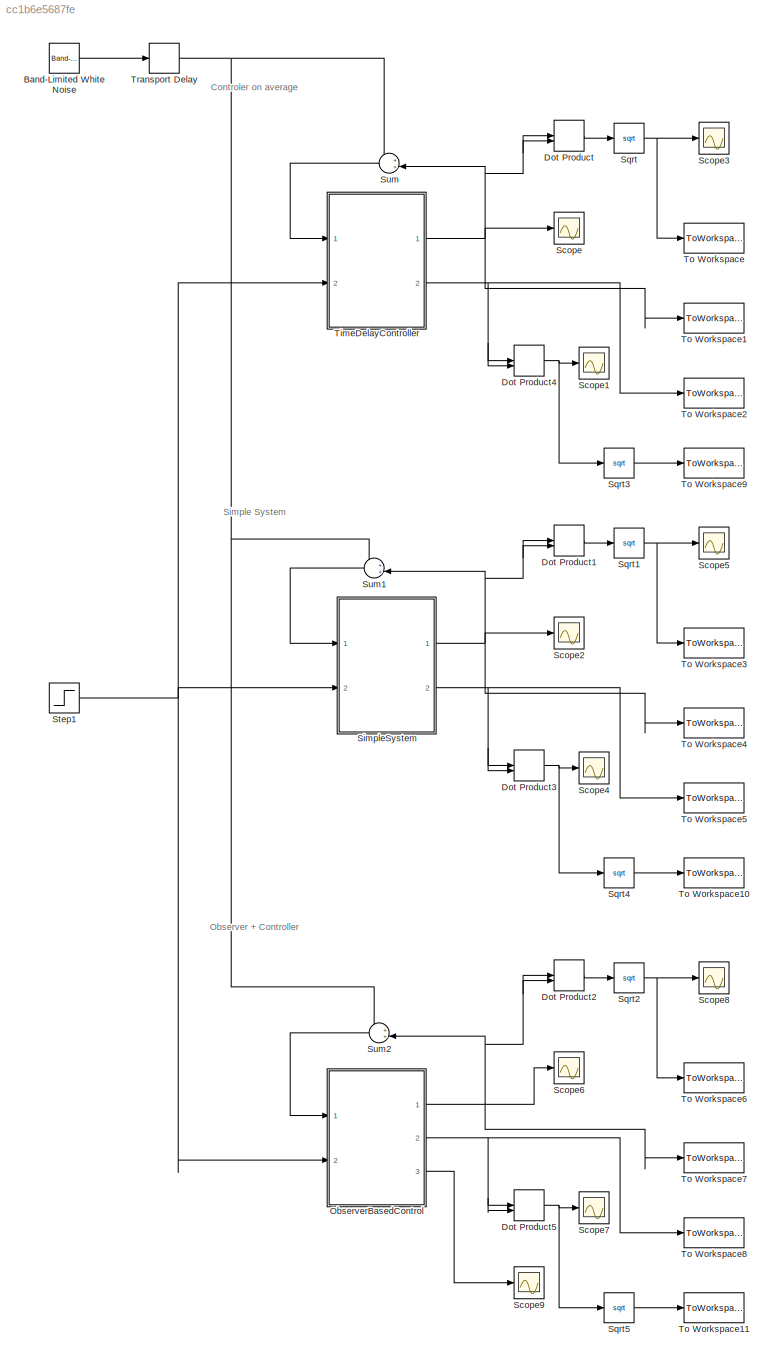
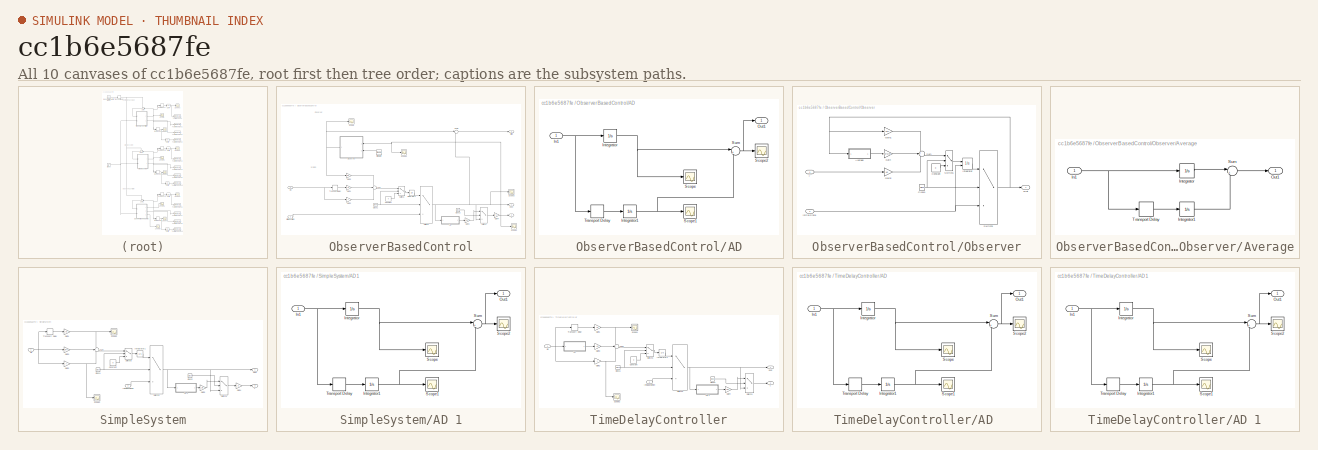
[diagram: thumbnail index - all 10 canvases of the model, root first then tree order]
MODEL slx_cc1b6e5687fe
KIND model
CONFIG AbsTol = 1e-6
CONFIG FixedStep = auto
CONFIG MaxStep = min([h hc ho])/50
CONFIG MinStep = auto
CONFIG RelTol = 1e-5
CONFIG SampleTimeConstraint = Unconstrained
CONFIG Solver = ode45
CONFIG SolverMode = Auto
CONFIG SolverName = ode45
CONFIG StartTime = 0.0
CONFIG StopTime = time
BLOCK [Reference] Band-Limited White Noise  REF=simulink/Sources/Band-Limited
White Noise
  Cov = P
  Ports = [0, 1]
  SourceBlock = simulink/Sources/Band-Limited\nWhite Noise
  SourceType = Band-Limited White Noise.
  Ts = min([hc ho])/5
  VectorParams1D = on
  seed = [23341]
BLOCK [DotProduct] Dot Product
  OutDataTypeStr = Inherit: Inherit via internal rule
BLOCK [DotProduct] Dot Product1
  OutDataTypeStr = Inherit: Inherit via internal rule
BLOCK [DotProduct] Dot Product2
  OutDataTypeStr = Inherit: Inherit via internal rule
BLOCK [DotProduct] Dot Product3
  OutDataTypeStr = Inherit: Inherit via internal rule
BLOCK [DotProduct] Dot Product4
  OutDataTypeStr = Inherit: Inherit via internal rule
BLOCK [DotProduct] Dot Product5
  OutDataTypeStr = Inherit: Inherit via internal rule
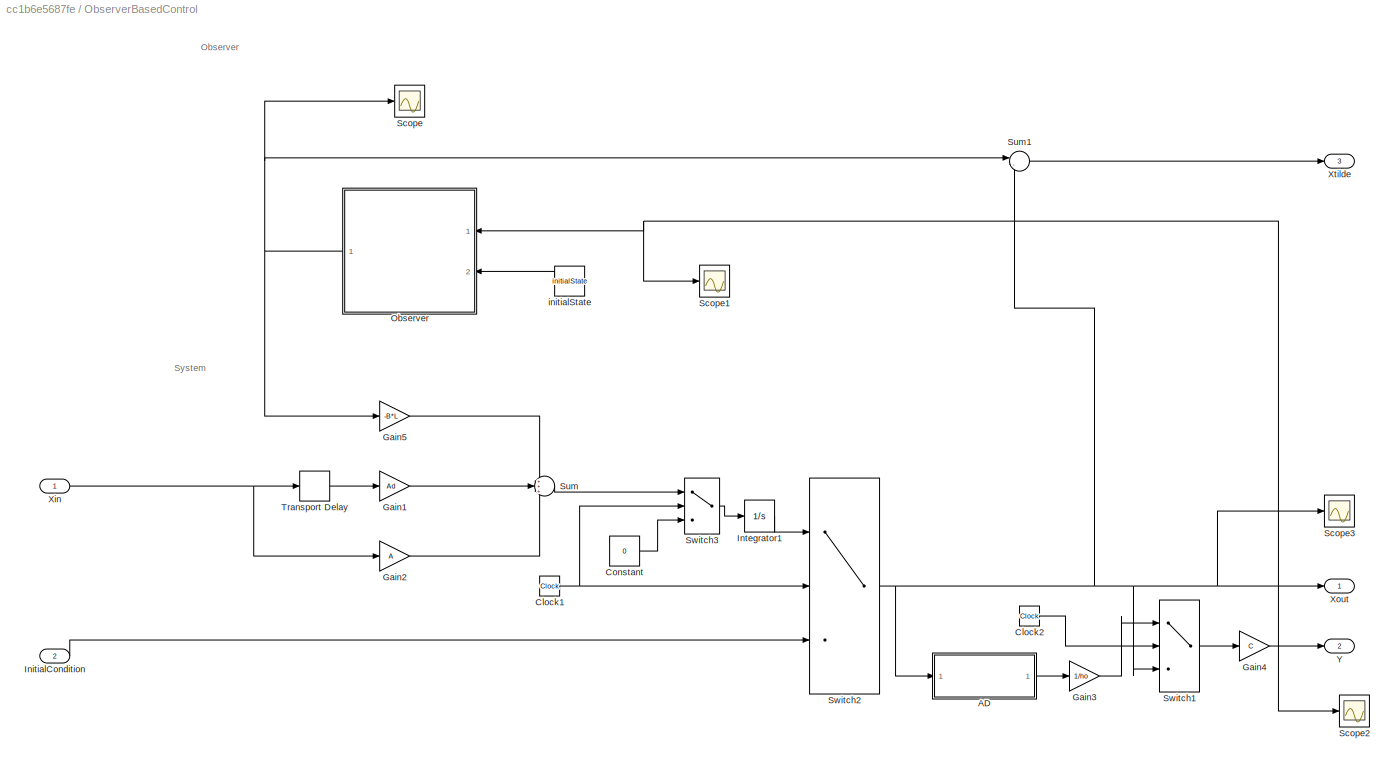
BLOCK [SubSystem] ObserverBasedControl
  Ports = [2, 3]
  RequestExecContextInheritance = off
BLOCK [SubSystem] ObserverBasedControl/AD
  Ports = [1, 1]
  RequestExecContextInheritance = off
BLOCK [Inport] ObserverBasedControl/AD/In1
  IconDisplay = Port number
BLOCK [Integrator] ObserverBasedControl/AD/Integrator
  Ports = [1, 1]
BLOCK [Integrator] ObserverBasedControl/AD/Integrator1
  Ports = [1, 1]
BLOCK [Outport] ObserverBasedControl/AD/Out1
  IconDisplay = Port number
BLOCK [Scope] ObserverBasedControl/AD/Scope
  Floating = off
  NumInputPorts = 1
  Ports = [1]
BLOCK [Scope] ObserverBasedControl/AD/Scope1
  Floating = off
  NumInputPorts = 1
  Ports = [1]
  SaveName = ScopeData1
BLOCK [Scope] ObserverBasedControl/AD/Scope2
  Floating = off
  NumInputPorts = 1
  Ports = [1]
  SaveName = ScopeData2
BLOCK [Sum] ObserverBasedControl/AD/Sum
  IconShape = round
  InputSameDT = off
  Inputs = |+-
  OutDataTypeStr = Inherit: Inherit via internal rule
  Ports = [2, 1]
  SaturateOnIntegerOverflow = off
BLOCK [TransportDelay] ObserverBasedControl/AD/Transport Delay
  DelayTime = ho
  Ports = [1, 1]
BLOCK [Clock] ObserverBasedControl/Clock1
BLOCK [Clock] ObserverBasedControl/Clock2
BLOCK [Constant] ObserverBasedControl/Constant
  Value = 0
BLOCK [Gain] ObserverBasedControl/Gain1
  Gain = Ad
  Multiplication = Matrix(K*u)
  OutDataTypeStr = Inherit: Inherit via internal rule
  ParamDataTypeStr = Inherit: Inherit via internal rule
  SaturateOnIntegerOverflow = off
BLOCK [Gain] ObserverBasedControl/Gain2
  Gain = A
  Multiplication = Matrix(K*u)
  OutDataTypeStr = Inherit: Inherit via internal rule
  ParamDataTypeStr = Inherit: Inherit via internal rule
  SaturateOnIntegerOverflow = off
BLOCK [Gain] ObserverBasedControl/Gain3
  Gain = 1/ho
  Multiplication = Matrix(K*u)
  OutDataTypeStr = Inherit: Inherit via internal rule
  ParamDataTypeStr = Inherit: Inherit via internal rule
  SaturateOnIntegerOverflow = off
BLOCK [Gain] ObserverBasedControl/Gain4
  Gain = C
  Multiplication = Matrix(K*u)
  OutDataTypeStr = Inherit: Inherit via internal rule
  ParamDataTypeStr = Inherit: Inherit via internal rule
  SaturateOnIntegerOverflow = off
BLOCK [Gain] ObserverBasedControl/Gain5
  Gain = -B*L
  Multiplication = Matrix(K*u)
  OutDataTypeStr = Inherit: Inherit via internal rule
  ParamDataTypeStr = Inherit: Inherit via internal rule
  SaturateOnIntegerOverflow = off
BLOCK [Inport] ObserverBasedControl/InitialCondition
  IconDisplay = Port number
  Port = 2
BLOCK [Integrator] ObserverBasedControl/Integrator1
  InitialCondition = init*ones(size(A,1),1)
  Ports = [1, 1]
BLOCK [SubSystem] ObserverBasedControl/Observer
  Ports = [2, 1]
  RequestExecContextInheritance = off
BLOCK [SubSystem] ObserverBasedControl/Observer/Average
  Ports = [1, 1]
  RequestExecContextInheritance = off
BLOCK [Inport] ObserverBasedControl/Observer/Average/In1
  IconDisplay = Port number
BLOCK [Integrator] ObserverBasedControl/Observer/Average/Integrator
  Ports = [1, 1]
BLOCK [Integrator] ObserverBasedControl/Observer/Average/Integrator1
  Ports = [1, 1]
BLOCK [Outport] ObserverBasedControl/Observer/Average/Out1
  IconDisplay = Port number
BLOCK [Sum] ObserverBasedControl/Observer/Average/Sum
  IconShape = round
  InputSameDT = off
  Inputs = |+-
  OutDataTypeStr = Inherit: Inherit via internal rule
  Ports = [2, 1]
  SaturateOnIntegerOverflow = off
BLOCK [TransportDelay] ObserverBasedControl/Observer/Average/Transport Delay
  DelayTime = ho
  Ports = [1, 1]
BLOCK [Clock] ObserverBasedControl/Observer/Clock1
BLOCK [Constant] ObserverBasedControl/Observer/Constant
  Value = 0
BLOCK [Gain] ObserverBasedControl/Observer/Gain
  Gain = -Ko*C/ho
  Multiplication = Matrix(K*u)
  OutDataTypeStr = Inherit: Inherit via internal rule
  ParamDataTypeStr = Inherit: Inherit via internal rule
  SaturateOnIntegerOverflow = off
BLOCK [Gain] ObserverBasedControl/Observer/Gain1
  Gain = A-B*L
  Multiplication = Matrix(K*u)
  OutDataTypeStr = Inherit: Inherit via internal rule
  ParamDataTypeStr = Inherit: Inherit via internal rule
  SaturateOnIntegerOverflow = off
BLOCK [Gain] ObserverBasedControl/Observer/Gain2
  Gain = Ko
  Multiplication = Matrix(K*u)
  OutDataTypeStr = Inherit: Inherit via internal rule
  ParamDataTypeStr = Inherit: Inherit via internal rule
  SaturateOnIntegerOverflow = off
BLOCK [Integrator] ObserverBasedControl/Observer/Integrator
  InitialConditionSource = external
  Ports = [2, 1]
BLOCK [Sum] ObserverBasedControl/Observer/Sum
  IconShape = round
  InputSameDT = off
  Inputs = +++
  OutDataTypeStr = Inherit: Inherit via internal rule
  Ports = [3, 1]
  SaturateOnIntegerOverflow = off
BLOCK [Switch] ObserverBasedControl/Observer/Switch1
  LockScale = on
  SaturateOnIntegerOverflow = off
  Threshold = max([h hc ho])
BLOCK [Switch] ObserverBasedControl/Observer/Switch3
  LockScale = on
  SaturateOnIntegerOverflow = off
  Threshold = max([h hc ho])
BLOCK [Inport] ObserverBasedControl/Observer/initialState
  IconDisplay = Port number
  Port = 2
BLOCK [Outport] ObserverBasedControl/Observer/xHat
  IconDisplay = Port number
BLOCK [Inport] ObserverBasedControl/Observer/y
  IconDisplay = Port number
BLOCK [Scope] ObserverBasedControl/Scope
  Floating = off
  NumInputPorts = 1
  Ports = [1]
  SaveName = ScopeData14
  TimeRange = 5
  ZoomMode = xonly
BLOCK [Scope] ObserverBasedControl/Scope1
  Floating = off
  NumInputPorts = 1
  Ports = [1]
  SaveName = ScopeData15
BLOCK [Scope] ObserverBasedControl/Scope2
  Floating = off
  NumInputPorts = 1
  Ports = [1]
  SaveName = ScopeData17
BLOCK [Scope] ObserverBasedControl/Scope3
  Floating = off
  NumInputPorts = 1
  Ports = [1]
  SaveName = ScopeData18
BLOCK [Sum] ObserverBasedControl/Sum
  IconShape = round
  InputSameDT = off
  Inputs = +++
  OutDataTypeStr = Inherit: Inherit via internal rule
  Ports = [3, 1]
  SaturateOnIntegerOverflow = off
BLOCK [Sum] ObserverBasedControl/Sum1
  IconShape = round
  InputSameDT = off
  Inputs = |-+
  OutDataTypeStr = Inherit: Inherit via internal rule
  Ports = [2, 1]
  SaturateOnIntegerOverflow = off
BLOCK [Switch] ObserverBasedControl/Switch1
  LockScale = on
  SaturateOnIntegerOverflow = off
  Threshold = max([h hc ho])
BLOCK [Switch] ObserverBasedControl/Switch2
  LockScale = on
  SaturateOnIntegerOverflow = off
  Threshold = max([h hc ho])
BLOCK [Switch] ObserverBasedControl/Switch3
  LockScale = on
  SaturateOnIntegerOverflow = off
  Threshold = max([h hc ho])
BLOCK [TransportDelay] ObserverBasedControl/Transport Delay
  DelayTime = ho
  Ports = [1, 1]
BLOCK [Inport] ObserverBasedControl/Xin
  IconDisplay = Port number
BLOCK [Outport] ObserverBasedControl/Xout
  IconDisplay = Port number
BLOCK [Outport] ObserverBasedControl/Xtilde
  IconDisplay = Port number
  Port = 3
BLOCK [Outport] ObserverBasedControl/Y
  IconDisplay = Port number
  Port = 2
BLOCK [Constant] ObserverBasedControl/initialState
  Value = initialState
BLOCK [Scope] Scope
  Floating = off
  NumInputPorts = 1
  Ports = [1]
  SaveName = ScopeData3
  ZoomMode = xonly
BLOCK [Scope] Scope1
  Floating = off
  NumInputPorts = 1
  Ports = [1]
  SaveName = ScopeData4
  ZoomMode = xonly
BLOCK [Scope] Scope2
  Floating = off
  NumInputPorts = 1
  Ports = [1]
  SaveName = ScopeData5
  ZoomMode = xonly
BLOCK [Scope] Scope3
  Floating = off
  NumInputPorts = 1
  Ports = [1]
  SaveName = ScopeData6
BLOCK [Scope] Scope4
  Floating = off
  NumInputPorts = 1
  Ports = [1]
  SaveName = ScopeData9
  ZoomMode = xonly
BLOCK [Scope] Scope5
  Floating = off
  NumInputPorts = 1
  Ports = [1]
  SaveName = ScopeData10
BLOCK [Scope] Scope6
  Floating = off
  NumInputPorts = 1
  Ports = [1]
  SaveName = ScopeData11
  ZoomMode = xonly
BLOCK [Scope] Scope7
  Floating = off
  NumInputPorts = 1
  Ports = [1]
  SaveName = ScopeData12
  ZoomMode = xonly
BLOCK [Scope] Scope8
  Floating = off
  NumInputPorts = 1
  Ports = [1]
  SaveName = ScopeData13
BLOCK [Scope] Scope9
  Floating = off
  NumInputPorts = 1
  Ports = [1]
  SaveName = ScopeData16
  ZoomMode = xonly
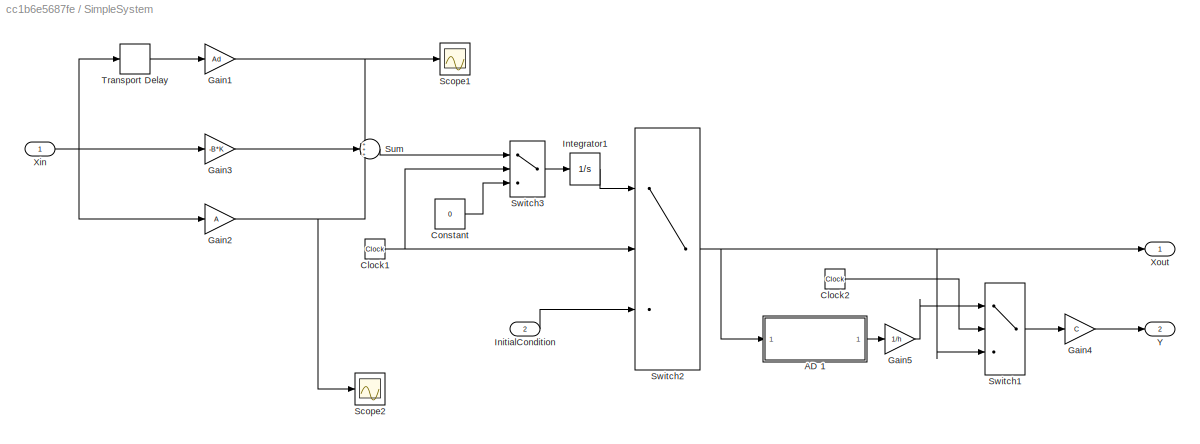
BLOCK [SubSystem] SimpleSystem
  Ports = [2, 2]
  RequestExecContextInheritance = off
BLOCK [SubSystem] SimpleSystem/AD 1
  Ports = [1, 1]
  RequestExecContextInheritance = off
BLOCK [Inport] SimpleSystem/AD 1/In1
  IconDisplay = Port number
BLOCK [Integrator] SimpleSystem/AD 1/Integrator
  Ports = [1, 1]
BLOCK [Integrator] SimpleSystem/AD 1/Integrator1
  Ports = [1, 1]
BLOCK [Outport] SimpleSystem/AD 1/Out1
  IconDisplay = Port number
BLOCK [Scope] SimpleSystem/AD 1/Scope
  Floating = off
  NumInputPorts = 1
  Ports = [1]
BLOCK [Scope] SimpleSystem/AD 1/Scope1
  Floating = off
  NumInputPorts = 1
  Ports = [1]
  SaveName = ScopeData1
BLOCK [Scope] SimpleSystem/AD 1/Scope2
  Floating = off
  NumInputPorts = 1
  Ports = [1]
  SaveName = ScopeData2
BLOCK [Sum] SimpleSystem/AD 1/Sum
  IconShape = round
  InputSameDT = off
  Inputs = |+-
  OutDataTypeStr = Inherit: Inherit via internal rule
  Ports = [2, 1]
  SaturateOnIntegerOverflow = off
BLOCK [TransportDelay] SimpleSystem/AD 1/Transport Delay
  DelayTime = h
  Ports = [1, 1]
BLOCK [Clock] SimpleSystem/Clock1
BLOCK [Clock] SimpleSystem/Clock2
BLOCK [Constant] SimpleSystem/Constant
  Value = 0
BLOCK [Gain] SimpleSystem/Gain1
  Gain = Ad
  Multiplication = Matrix(K*u)
  OutDataTypeStr = Inherit: Inherit via internal rule
  ParamDataTypeStr = Inherit: Inherit via internal rule
  SaturateOnIntegerOverflow = off
BLOCK [Gain] SimpleSystem/Gain2
  Gain = A
  Multiplication = Matrix(K*u)
  OutDataTypeStr = Inherit: Inherit via internal rule
  ParamDataTypeStr = Inherit: Inherit via internal rule
  SaturateOnIntegerOverflow = off
BLOCK [Gain] SimpleSystem/Gain3
  Gain = -B*K
  Multiplication = Matrix(K*u)
  OutDataTypeStr = Inherit: Inherit via internal rule
  ParamDataTypeStr = Inherit: Inherit via internal rule
  SaturateOnIntegerOverflow = off
BLOCK [Gain] SimpleSystem/Gain4
  Gain = C
  Multiplication = Matrix(K*u)
  OutDataTypeStr = Inherit: Inherit via internal rule
  ParamDataTypeStr = Inherit: Inherit via internal rule
  SaturateOnIntegerOverflow = off
BLOCK [Gain] SimpleSystem/Gain5
  Gain = 1/h
  Multiplication = Matrix(K*u)
  OutDataTypeStr = Inherit: Inherit via internal rule
  ParamDataTypeStr = Inherit: Inherit via internal rule
  SaturateOnIntegerOverflow = off
BLOCK [Inport] SimpleSystem/InitialCondition
  IconDisplay = Port number
  Port = 2
BLOCK [Integrator] SimpleSystem/Integrator1
  InitialCondition = init*ones(size(A,1),1)
  Ports = [1, 1]
BLOCK [Scope] SimpleSystem/Scope1
  Floating = off
  NumInputPorts = 1
  Ports = [1]
  SaveName = ScopeData7
BLOCK [Scope] SimpleSystem/Scope2
  Floating = off
  NumInputPorts = 1
  Ports = [1]
  SaveName = ScopeData8
BLOCK [Sum] SimpleSystem/Sum
  IconShape = round
  InputSameDT = off
  Inputs = +++
  OutDataTypeStr = Inherit: Inherit via internal rule
  Ports = [3, 1]
  SaturateOnIntegerOverflow = off
BLOCK [Switch] SimpleSystem/Switch1
  LockScale = on
  SaturateOnIntegerOverflow = off
  Threshold = max([h hc ho])
BLOCK [Switch] SimpleSystem/Switch2
  LockScale = on
  SaturateOnIntegerOverflow = off
  Threshold = max([h hc ho])
BLOCK [Switch] SimpleSystem/Switch3
  LockScale = on
  SaturateOnIntegerOverflow = off
  Threshold = max([h hc ho])
BLOCK [TransportDelay] SimpleSystem/Transport Delay
  DelayTime = h
  Ports = [1, 1]
BLOCK [Inport] SimpleSystem/Xin
  IconDisplay = Port number
BLOCK [Outport] SimpleSystem/Xout
  IconDisplay = Port number
BLOCK [Outport] SimpleSystem/Y
  IconDisplay = Port number
  Port = 2
BLOCK [Sqrt] Sqrt
BLOCK [Sqrt] Sqrt1
BLOCK [Sqrt] Sqrt2
BLOCK [Sqrt] Sqrt3
BLOCK [Sqrt] Sqrt4
BLOCK [Sqrt] Sqrt5
BLOCK [Step] Step1
  After = 0
  Before = init*ones(size(A,1),1)
  SampleTime = 0
  Time = hc
BLOCK [Sum] Sum
  IconShape = round
  InputSameDT = off
  Inputs = ++|
  OutDataTypeStr = Inherit: Inherit via internal rule
  Ports = [2, 1]
  SaturateOnIntegerOverflow = off
BLOCK [Sum] Sum1
  IconShape = round
  InputSameDT = off
  Inputs = ++|
  OutDataTypeStr = Inherit: Inherit via internal rule
  Ports = [2, 1]
  SaturateOnIntegerOverflow = off
BLOCK [Sum] Sum2
  IconShape = round
  InputSameDT = off
  Inputs = ++|
  OutDataTypeStr = Inherit: Inherit via internal rule
  Ports = [2, 1]
  SaturateOnIntegerOverflow = off
BLOCK [SubSystem] TimeDelayController
  Ports = [2, 2]
  RequestExecContextInheritance = off
BLOCK [SubSystem] TimeDelayController/AD 
  Ports = [1, 1]
  RequestExecContextInheritance = off
BLOCK [Inport] TimeDelayController/AD /In1
  IconDisplay = Port number
BLOCK [Integrator] TimeDelayController/AD /Integrator
  Ports = [1, 1]
BLOCK [Integrator] TimeDelayController/AD /Integrator1
  Ports = [1, 1]
BLOCK [Outport] TimeDelayController/AD /Out1
  IconDisplay = Port number
BLOCK [Scope] TimeDelayController/AD /Scope
  Floating = off
  NumInputPorts = 1
  Ports = [1]
BLOCK [Scope] TimeDelayController/AD /Scope1
  Floating = off
  NumInputPorts = 1
  Ports = [1]
  SaveName = ScopeData1
BLOCK [Scope] TimeDelayController/AD /Scope2
  Floating = off
  NumInputPorts = 1
  Ports = [1]
  SaveName = ScopeData2
BLOCK [Sum] TimeDelayController/AD /Sum
  IconShape = round
  InputSameDT = off
  Inputs = |+-
  OutDataTypeStr = Inherit: Inherit via internal rule
  Ports = [2, 1]
  SaturateOnIntegerOverflow = off
BLOCK [TransportDelay] TimeDelayController/AD /Transport Delay
  DelayTime = hc
  Ports = [1, 1]
BLOCK [SubSystem] TimeDelayController/AD 1
  Ports = [1, 1]
  RequestExecContextInheritance = off
BLOCK [Inport] TimeDelayController/AD 1/In1
  IconDisplay = Port number
BLOCK [Integrator] TimeDelayController/AD 1/Integrator
  Ports = [1, 1]
BLOCK [Integrator] TimeDelayController/AD 1/Integrator1
  Ports = [1, 1]
BLOCK [Outport] TimeDelayController/AD 1/Out1
  IconDisplay = Port number
BLOCK [Scope] TimeDelayController/AD 1/Scope
  Floating = off
  NumInputPorts = 1
  Ports = [1]
BLOCK [Scope] TimeDelayController/AD 1/Scope1
  Floating = off
  NumInputPorts = 1
  Ports = [1]
  SaveName = ScopeData1
BLOCK [Scope] TimeDelayController/AD 1/Scope2
  Floating = off
  NumInputPorts = 1
  Ports = [1]
  SaveName = ScopeData2
BLOCK [Sum] TimeDelayController/AD 1/Sum
  IconShape = round
  InputSameDT = off
  Inputs = |+-
  OutDataTypeStr = Inherit: Inherit via internal rule
  Ports = [2, 1]
  SaturateOnIntegerOverflow = off
BLOCK [TransportDelay] TimeDelayController/AD 1/Transport Delay
  DelayTime = hc
  Ports = [1, 1]
BLOCK [Clock] TimeDelayController/Clock1
BLOCK [Clock] TimeDelayController/Clock2
BLOCK [Constant] TimeDelayController/Constant
  Value = 0
BLOCK [Gain] TimeDelayController/Gain1
  Gain = Ad
  Multiplication = Matrix(K*u)
  OutDataTypeStr = Inherit: Inherit via internal rule
  ParamDataTypeStr = Inherit: Inherit via internal rule
  SaturateOnIntegerOverflow = off
BLOCK [Gain] TimeDelayController/Gain2
  Gain = A
  Multiplication = Matrix(K*u)
  OutDataTypeStr = Inherit: Inherit via internal rule
  ParamDataTypeStr = Inherit: Inherit via internal rule
  SaturateOnIntegerOverflow = off
BLOCK [Gain] TimeDelayController/Gain3
  Gain = AD
  Multiplication = Matrix(K*u)
  OutDataTypeStr = Inherit: Inherit via internal rule
  ParamDataTypeStr = Inherit: Inherit via internal rule
  SaturateOnIntegerOverflow = off
BLOCK [Gain] TimeDelayController/Gain4
  Gain = 1/hc
  Multiplication = Matrix(K*u)
  OutDataTypeStr = Inherit: Inherit via internal rule
  ParamDataTypeStr = Inherit: Inherit via internal rule
  SaturateOnIntegerOverflow = off
BLOCK [Inport] TimeDelayController/InitialCondition
  IconDisplay = Port number
  Port = 2
BLOCK [Integrator] TimeDelayController/Integrator1
  InitialCondition = init*ones(size(A,1),1)
  Ports = [1, 1]
BLOCK [Scope] TimeDelayController/Scope1
  Floating = off
  NumInputPorts = 1
  Ports = [1]
  SaveName = ScopeData7
BLOCK [Scope] TimeDelayController/Scope2
  Floating = off
  NumInputPorts = 1
  Ports = [1]
  SaveName = ScopeData8
BLOCK [Sum] TimeDelayController/Sum
  IconShape = round
  InputSameDT = off
  Inputs = +++
  OutDataTypeStr = Inherit: Inherit via internal rule
  Ports = [3, 1]
  SaturateOnIntegerOverflow = off
BLOCK [Switch] TimeDelayController/Switch1
  LockScale = on
  SaturateOnIntegerOverflow = off
  Threshold = max([h hc ho])
BLOCK [Switch] TimeDelayController/Switch2
  LockScale = on
  SaturateOnIntegerOverflow = off
  Threshold = max([h hc ho])
BLOCK [Switch] TimeDelayController/Switch3
  LockScale = on
  SaturateOnIntegerOverflow = off
  Threshold = max([h hc ho])
BLOCK [TransportDelay] TimeDelayController/Transport Delay
  DelayTime = hc
  Ports = [1, 1]
BLOCK [Inport] TimeDelayController/Xin
  IconDisplay = Port number
BLOCK [Outport] TimeDelayController/Xout
  IconDisplay = Port number
BLOCK [Outport] TimeDelayController/Y
  IconDisplay = Port number
  Port = 2
BLOCK [ToWorkspace] To Workspace
  Decimation = 3
  FixptAsFi = on
  MaxDataPoints = inf
  Ports = [1]
  SampleTime = -1
  Save2DSignal = 3-D array (concatenate along third dimension)
  SaveFormat = Structure With Time
  VariableName = xcNorm
BLOCK [ToWorkspace] To Workspace1
  Decimation = 3
  FixptAsFi = on
  MaxDataPoints = inf
  Ports = [1]
  SampleTime = -1
  Save2DSignal = 3-D array (concatenate along third dimension)
  SaveFormat = Structure With Time
  VariableName = xc
BLOCK [ToWorkspace] To Workspace10
  Decimation = 3
  FixptAsFi = on
  MaxDataPoints = inf
  Ports = [1]
  SampleTime = -1
  Save2DSignal = 3-D array (concatenate along third dimension)
  SaveFormat = Structure With Time
  VariableName = yNorm
BLOCK [ToWorkspace] To Workspace11
  Decimation = 3
  FixptAsFi = on
  MaxDataPoints = inf
  Ports = [1]
  SampleTime = -1
  Save2DSignal = 3-D array (concatenate along third dimension)
  SaveFormat = Structure With Time
  VariableName = yoNorm
BLOCK [ToWorkspace] To Workspace2
  Decimation = 3
  FixptAsFi = on
  MaxDataPoints = inf
  Ports = [1]
  SampleTime = -1
  Save2DSignal = 3-D array (concatenate along third dimension)
  SaveFormat = Structure With Time
  VariableName = yc
BLOCK [ToWorkspace] To Workspace3
  Decimation = 3
  FixptAsFi = on
  MaxDataPoints = inf
  Ports = [1]
  SampleTime = -1
  Save2DSignal = 3-D array (concatenate along third dimension)
  SaveFormat = Structure With Time
  VariableName = xNorm
BLOCK [ToWorkspace] To Workspace4
  Decimation = 3
  FixptAsFi = on
  MaxDataPoints = inf
  Ports = [1]
  SampleTime = -1
  Save2DSignal = 3-D array (concatenate along third dimension)
  SaveFormat = Structure With Time
  VariableName = x
BLOCK [ToWorkspace] To Workspace5
  Decimation = 3
  FixptAsFi = on
  MaxDataPoints = inf
  Ports = [1]
  SampleTime = -1
  Save2DSignal = 3-D array (concatenate along third dimension)
  SaveFormat = Structure With Time
  VariableName = y
BLOCK [ToWorkspace] To Workspace6
  Decimation = 3
  FixptAsFi = on
  MaxDataPoints = inf
  Ports = [1]
  SampleTime = -1
  Save2DSignal = 3-D array (concatenate along third dimension)
  SaveFormat = Structure With Time
  VariableName = xoNorm
BLOCK [ToWorkspace] To Workspace7
  Decimation = 3
  FixptAsFi = on
  MaxDataPoints = inf
  Ports = [1]
  SampleTime = -1
  Save2DSignal = 3-D array (concatenate along third dimension)
  SaveFormat = Structure With Time
  VariableName = xo
BLOCK [ToWorkspace] To Workspace8
  Decimation = 3
  FixptAsFi = on
  MaxDataPoints = inf
  Ports = [1]
  SampleTime = -1
  Save2DSignal = 3-D array (concatenate along third dimension)
  SaveFormat = Structure With Time
  VariableName = yo
BLOCK [ToWorkspace] To Workspace9
  Decimation = 3
  FixptAsFi = on
  MaxDataPoints = inf
  Ports = [1]
  SampleTime = -1
  Save2DSignal = 3-D array (concatenate along third dimension)
  SaveFormat = Structure With Time
  VariableName = ycNorm
BLOCK [TransportDelay] Transport Delay
  DelayTime = tn
  Ports = [1, 1]
ANNOTATION (root): Controler on average
ANNOTATION (root): Observer + Controller
ANNOTATION (root): Simple System
ANNOTATION ObserverBasedControl: Observer
ANNOTATION ObserverBasedControl: System
LINE Band-Limited White Noise:1 -> Transport Delay:1
LINE Dot Product1:1 -> Sqrt1:1
LINE Dot Product2:1 -> Sqrt2:1
NET Dot Product3:1 -> Scope4:1, Sqrt4:1
NET Dot Product4:1 -> Scope1:1, Sqrt3:1
NET Dot Product5:1 -> Scope7:1, Sqrt5:1
LINE Dot Product:1 -> Sqrt:1
NET ObserverBasedControl/AD/In1:1 -> ObserverBasedControl/AD/Integrator:1, ObserverBasedControl/AD/Transport Delay:1
NET ObserverBasedControl/AD/Integrator1:1 -> ObserverBasedControl/AD/Scope1:1, ObserverBasedControl/AD/Sum:2
NET ObserverBasedControl/AD/Integrator:1 -> ObserverBasedControl/AD/Scope:1, ObserverBasedControl/AD/Sum:1
NET ObserverBasedControl/AD/Sum:1 -> ObserverBasedControl/AD/Out1:1, ObserverBasedControl/AD/Scope2:1
LINE ObserverBasedControl/AD/Transport Delay:1 -> ObserverBasedControl/AD/Integrator1:1
LINE ObserverBasedControl/AD:1 -> ObserverBasedControl/Gain3:1
NET ObserverBasedControl/Clock1:1 -> ObserverBasedControl/Switch2:2, ObserverBasedControl/Switch3:2
LINE ObserverBasedControl/Clock2:1 -> ObserverBasedControl/Switch1:2
LINE ObserverBasedControl/Constant:1 -> ObserverBasedControl/Switch3:3
LINE ObserverBasedControl/Gain1:1 -> ObserverBasedControl/Sum:2
LINE ObserverBasedControl/Gain2:1 -> ObserverBasedControl/Sum:3
LINE ObserverBasedControl/Gain3:1 -> ObserverBasedControl/Switch1:1
NET ObserverBasedControl/Gain4:1 -> ObserverBasedControl/Observer:1, ObserverBasedControl/Scope1:1, ObserverBasedControl/Scope2:1, ObserverBasedControl/Y:1
LINE ObserverBasedControl/Gain5:1 -> ObserverBasedControl/Sum:1
LINE ObserverBasedControl/InitialCondition:1 -> ObserverBasedControl/Switch2:3
LINE ObserverBasedControl/Integrator1:1 -> ObserverBasedControl/Switch2:1
NET ObserverBasedControl/Observer/Average/In1:1 -> ObserverBasedControl/Observer/Average/Integrator:1, ObserverBasedControl/Observer/Average/Transport Delay:1
LINE ObserverBasedControl/Observer/Average/Integrator1:1 -> ObserverBasedControl/Observer/Average/Sum:2
LINE ObserverBasedControl/Observer/Average/Integrator:1 -> ObserverBasedControl/Observer/Average/Sum:1
LINE ObserverBasedControl/Observer/Average/Sum:1 -> ObserverBasedControl/Observer/Average/Out1:1
LINE ObserverBasedControl/Observer/Average/Transport Delay:1 -> ObserverBasedControl/Observer/Average/Integrator1:1
LINE ObserverBasedControl/Observer/Average:1 -> ObserverBasedControl/Observer/Gain:1
NET ObserverBasedControl/Observer/Clock1:1 -> ObserverBasedControl/Observer/Switch1:2, ObserverBasedControl/Observer/Switch3:2
LINE ObserverBasedControl/Observer/Constant:1 -> ObserverBasedControl/Observer/Switch1:3
LINE ObserverBasedControl/Observer/Gain1:1 -> ObserverBasedControl/Observer/Sum:1
LINE ObserverBasedControl/Observer/Gain2:1 -> ObserverBasedControl/Observer/Sum:3
LINE ObserverBasedControl/Observer/Gain:1 -> ObserverBasedControl/Observer/Sum:2
LINE ObserverBasedControl/Observer/Integrator:1 -> ObserverBasedControl/Observer/Switch3:1
LINE ObserverBasedControl/Observer/Sum:1 -> ObserverBasedControl/Observer/Switch1:1
LINE ObserverBasedControl/Observer/Switch1:1 -> ObserverBasedControl/Observer/Integrator:1
NET ObserverBasedControl/Observer/Switch3:1 -> ObserverBasedControl/Observer/Average:1, ObserverBasedControl/Observer/Gain1:1, ObserverBasedControl/Observer/xHat:1
NET ObserverBasedControl/Observer/initialState:1 -> ObserverBasedControl/Observer/Integrator:2, ObserverBasedControl/Observer/Switch3:3
LINE ObserverBasedControl/Observer/y:1 -> ObserverBasedControl/Observer/Gain2:1
NET ObserverBasedControl/Observer:1 -> ObserverBasedControl/Gain5:1, ObserverBasedControl/Scope:1, ObserverBasedControl/Sum1:1
LINE ObserverBasedControl/Sum1:1 -> ObserverBasedControl/Xtilde:1
LINE ObserverBasedControl/Sum:1 -> ObserverBasedControl/Switch3:1
LINE ObserverBasedControl/Switch1:1 -> ObserverBasedControl/Gain4:1
NET ObserverBasedControl/Switch2:1 -> ObserverBasedControl/AD:1, ObserverBasedControl/Scope3:1, ObserverBasedControl/Sum1:2, ObserverBasedControl/Switch1:3, ObserverBasedControl/Xout:1
LINE ObserverBasedControl/Switch3:1 -> ObserverBasedControl/Integrator1:1
LINE ObserverBasedControl/Transport Delay:1 -> ObserverBasedControl/Gain1:1
NET ObserverBasedControl/Xin:1 -> ObserverBasedControl/Gain2:1, ObserverBasedControl/Transport Delay:1
LINE ObserverBasedControl/initialState:1 -> ObserverBasedControl/Observer:2
NET ObserverBasedControl:1 -> Dot Product2:1, Dot Product2:2, Scope6:1, Sum2:2, To Workspace7:1
NET ObserverBasedControl:2 -> Dot Product5:1, Dot Product5:2, To Workspace8:1
LINE ObserverBasedControl:3 -> Scope9:1
NET SimpleSystem/AD 1/In1:1 -> SimpleSystem/AD 1/Integrator:1, SimpleSystem/AD 1/Transport Delay:1
NET SimpleSystem/AD 1/Integrator1:1 -> SimpleSystem/AD 1/Scope1:1, SimpleSystem/AD 1/Sum:2
NET SimpleSystem/AD 1/Integrator:1 -> SimpleSystem/AD 1/Scope:1, SimpleSystem/AD 1/Sum:1
NET SimpleSystem/AD 1/Sum:1 -> SimpleSystem/AD 1/Out1:1, SimpleSystem/AD 1/Scope2:1
LINE SimpleSystem/AD 1/Transport Delay:1 -> SimpleSystem/AD 1/Integrator1:1
LINE SimpleSystem/AD 1:1 -> SimpleSystem/Gain5:1
NET SimpleSystem/Clock1:1 -> SimpleSystem/Switch2:2, SimpleSystem/Switch3:2
LINE SimpleSystem/Clock2:1 -> SimpleSystem/Switch1:2
LINE SimpleSystem/Constant:1 -> SimpleSystem/Switch3:3
NET SimpleSystem/Gain1:1 -> SimpleSystem/Scope1:1, SimpleSystem/Sum:1
NET SimpleSystem/Gain2:1 -> SimpleSystem/Scope2:1, SimpleSystem/Sum:3
LINE SimpleSystem/Gain3:1 -> SimpleSystem/Sum:2
LINE SimpleSystem/Gain4:1 -> SimpleSystem/Y:1
LINE SimpleSystem/Gain5:1 -> SimpleSystem/Switch1:1
LINE SimpleSystem/InitialCondition:1 -> SimpleSystem/Switch2:3
LINE SimpleSystem/Integrator1:1 -> SimpleSystem/Switch2:1
LINE SimpleSystem/Sum:1 -> SimpleSystem/Switch3:1
LINE SimpleSystem/Switch1:1 -> SimpleSystem/Gain4:1
NET SimpleSystem/Switch2:1 -> SimpleSystem/AD 1:1, SimpleSystem/Switch1:3, SimpleSystem/Xout:1
LINE SimpleSystem/Switch3:1 -> SimpleSystem/Integrator1:1
LINE SimpleSystem/Transport Delay:1 -> SimpleSystem/Gain1:1
NET SimpleSystem/Xin:1 -> SimpleSystem/Gain2:1, SimpleSystem/Gain3:1, SimpleSystem/Transport Delay:1
NET SimpleSystem:1 -> Dot Product1:1, Dot Product1:2, Scope2:1, Sum1:2, To Workspace4:1
NET SimpleSystem:2 -> Dot Product3:1, Dot Product3:2, To Workspace5:1
NET Sqrt1:1 -> Scope5:1, To Workspace3:1
NET Sqrt2:1 -> Scope8:1, To Workspace6:1
LINE Sqrt3:1 -> To Workspace9:1
LINE Sqrt4:1 -> To Workspace10:1
LINE Sqrt5:1 -> To Workspace11:1
NET Sqrt:1 -> Scope3:1, To Workspace:1
NET Step1:1 -> ObserverBasedControl:2, SimpleSystem:2, TimeDelayController:2
LINE Sum1:1 -> SimpleSystem:1
LINE Sum2:1 -> ObserverBasedControl:1
LINE Sum:1 -> TimeDelayController:1
NET TimeDelayController/AD /In1:1 -> TimeDelayController/AD /Integrator:1, TimeDelayController/AD /Transport Delay:1
NET TimeDelayController/AD /Integrator1:1 -> TimeDelayController/AD /Scope1:1, TimeDelayController/AD /Sum:2
NET TimeDelayController/AD /Integrator:1 -> TimeDelayController/AD /Scope:1, TimeDelayController/AD /Sum:1
NET TimeDelayController/AD /Sum:1 -> TimeDelayController/AD /Out1:1, TimeDelayController/AD /Scope2:1
LINE TimeDelayController/AD /Transport Delay:1 -> TimeDelayController/AD /Integrator1:1
NET TimeDelayController/AD 1/In1:1 -> TimeDelayController/AD 1/Integrator:1, TimeDelayController/AD 1/Transport Delay:1
NET TimeDelayController/AD 1/Integrator1:1 -> TimeDelayController/AD 1/Scope1:1, TimeDelayController/AD 1/Sum:2
NET TimeDelayController/AD 1/Integrator:1 -> TimeDelayController/AD 1/Scope:1, TimeDelayController/AD 1/Sum:1
NET TimeDelayController/AD 1/Sum:1 -> TimeDelayController/AD 1/Out1:1, TimeDelayController/AD 1/Scope2:1
LINE TimeDelayController/AD 1/Transport Delay:1 -> TimeDelayController/AD 1/Integrator1:1
LINE TimeDelayController/AD 1:1 -> TimeDelayController/Gain4:1
LINE TimeDelayController/AD :1 -> TimeDelayController/Gain3:1
NET TimeDelayController/Clock1:1 -> TimeDelayController/Switch2:2, TimeDelayController/Switch3:2
LINE TimeDelayController/Clock2:1 -> TimeDelayController/Switch1:2
LINE TimeDelayController/Constant:1 -> TimeDelayController/Switch3:3
NET TimeDelayController/Gain1:1 -> TimeDelayController/Scope1:1, TimeDelayController/Sum:1
NET TimeDelayController/Gain2:1 -> TimeDelayController/Scope2:1, TimeDelayController/Sum:3
LINE TimeDelayController/Gain3:1 -> TimeDelayController/Sum:2
LINE TimeDelayController/Gain4:1 -> TimeDelayController/Switch1:1
LINE TimeDelayController/InitialCondition:1 -> TimeDelayController/Switch2:3
LINE TimeDelayController/Integrator1:1 -> TimeDelayController/Switch2:1
LINE TimeDelayController/Sum:1 -> TimeDelayController/Switch3:1
LINE TimeDelayController/Switch1:1 -> TimeDelayController/Y:1
NET TimeDelayController/Switch2:1 -> TimeDelayController/AD 1:1, TimeDelayController/Switch1:3, TimeDelayController/Xout:1
LINE TimeDelayController/Switch3:1 -> TimeDelayController/Integrator1:1
LINE TimeDelayController/Transport Delay:1 -> TimeDelayController/Gain1:1
NET TimeDelayController/Xin:1 -> TimeDelayController/AD :1, TimeDelayController/Gain2:1, TimeDelayController/Transport Delay:1
NET TimeDelayController:1 -> Dot Product:1, Dot Product:2, Scope:1, Sum:2, To Workspace1:1
NET TimeDelayController:2 -> Dot Product4:1, Dot Product4:2, To Workspace2:1
NET Transport Delay:1 -> Sum1:1, Sum2:1, Sum:1
note: NET lines group one-source signal fan-out (src -> all destinations, sorted); 1:1 wires keep LINE
